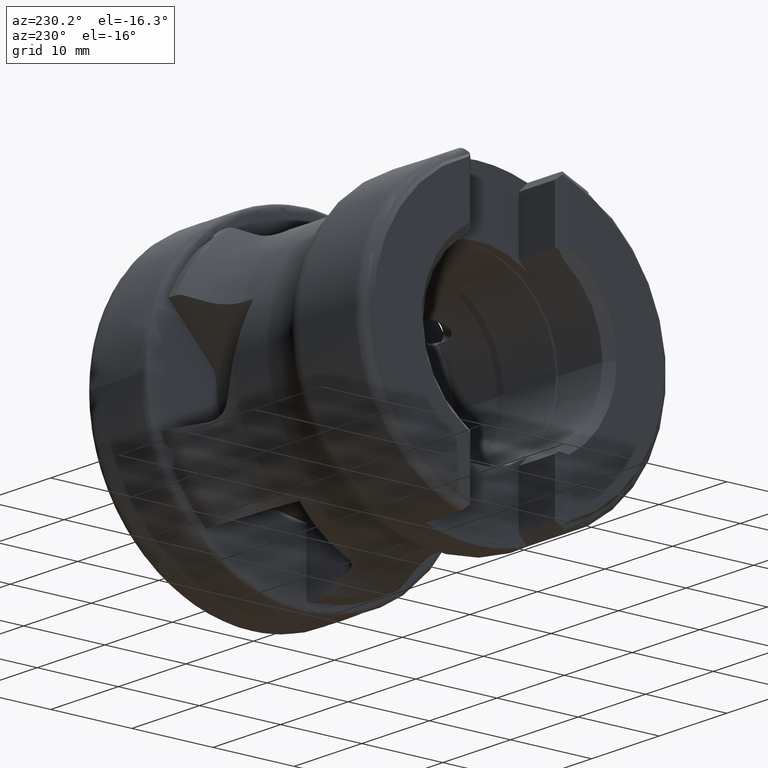
[diagram: clean part render]
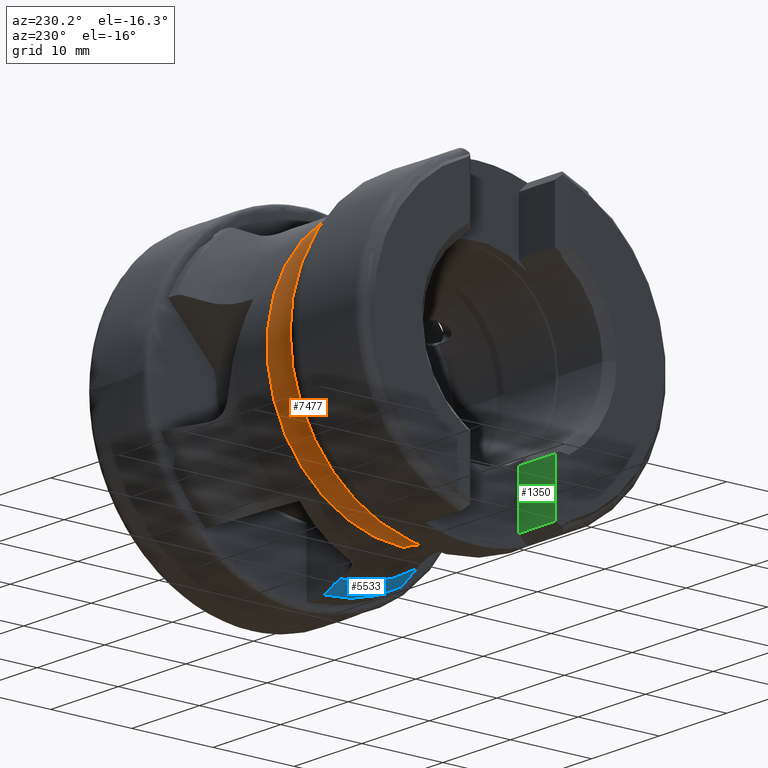
[diagram: same view with three faces highlighted in distinct colors, each labeled with its STEP entity id]
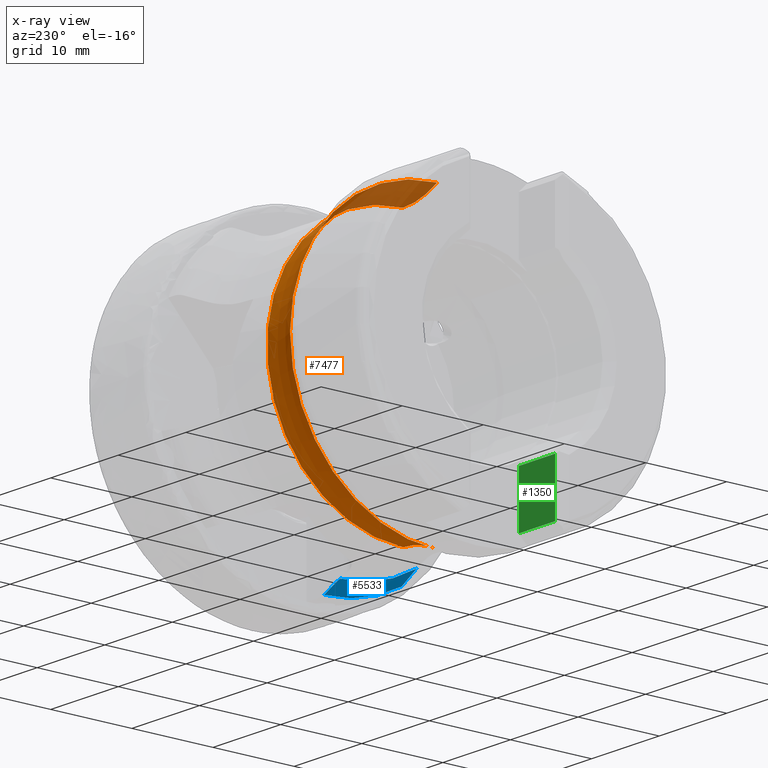
[diagram: x-ray of the same camera — body ghosted, the three highlighted faces saturated]
A machine part, auxiliary view with three faces highlighted in distinct colors.
The next image is the same camera in x-ray (body ghosted, the three faces saturated) — at least one of them is partly hidden behind the body in this view.
Their STEP definitions:

[orange] entity #7477 — the highlighted toroidal blend (fillet) surface has major radius 26.75 mm and minor (blend) radius 10 mm.
#306 = DIRECTION ( 'NONE',  ( 0.0000000000000000000, 1.224646799147353500E-016, 1.000000000000000000 ) ) ;
#443 = DIRECTION ( 'NONE',  ( 0.0000000000000000000, 0.0000000000000000000, -1.000000000000000000 ) ) ;
#501 = EDGE_CURVE ( 'NONE', #7365, #2012, #7478, .T. ) ;
#1208 = FACE_OUTER_BOUND ( 'NONE', #3200, .T. ) ;
#1991 = AXIS2_PLACEMENT_3D ( 'NONE', #7860, #4502, #443 ) ;
#2012 = VERTEX_POINT ( 'NONE', #2852 ) ;
#2071 = ORIENTED_EDGE ( 'NONE', *, *, #501, .T. ) ;
#2200 = ORIENTED_EDGE ( 'NONE', *, *, #5921, .F. ) ;
#2356 = CIRCLE ( 'NONE', #6063, 16.75000000000000000 ) ;
#2830 = AXIS2_PLACEMENT_3D ( 'NONE', #8408, #4364, #306 ) ;
#2852 = CARTESIAN_POINT ( 'NONE',  ( -27.13351365764274400, 2.251215773690051800E-015, -18.10352484776151600 ) ) ;
#3053 = AXIS2_PLACEMENT_3D ( 'NONE', #3245, #7995, #3946 ) ;
#3108 = ORIENTED_EDGE ( 'NONE', *, *, #7207, .T. ) ;
#3200 = EDGE_LOOP ( 'NONE', ( #6243, #2200, #2071, #3108 ) ) ;
#3245 = CARTESIAN_POINT ( 'NONE',  ( -27.13351365764274400, 0.0000000000000000000, 0.0000000000000000000 ) ) ;
#3507 = CARTESIAN_POINT ( 'NONE',  ( -22.10972351058022100, 0.0000000000000000000, 0.0000000000000000000 ) ) ;
#3946 = DIRECTION ( 'NONE',  ( 0.0000000000000000000, 0.0000000000000000000, -1.000000000000000000 ) ) ;
#4190 = DIRECTION ( 'NONE',  ( 0.0000000000000000000, 0.0000000000000000000, -1.000000000000000000 ) ) ;
#4274 = VERTEX_POINT ( 'NONE', #4682 ) ;
#4364 = DIRECTION ( 'NONE',  ( 0.0000000000000000000, 1.000000000000000000, -1.224646799147353200E-016 ) ) ;
#4502 = DIRECTION ( 'NONE',  ( 1.000000000000000000, -0.0000000000000000000, -0.0000000000000000000 ) ) ;
#4682 = CARTESIAN_POINT ( 'NONE',  ( -27.13351365764274400, 0.0000000000000000000, 18.10352484776151600 ) ) ;
#4703 = CIRCLE ( 'NONE', #3053, 18.10352484776151600 ) ;
#4789 = CARTESIAN_POINT ( 'NONE',  ( -22.10972351058022100, 2.134162882190694600E-015, 16.75000000000000000 ) ) ;
#5213 = DIRECTION ( 'NONE',  ( 0.0000000000000000000, 0.0000000000000000000, -1.000000000000000000 ) ) ;
#5760 = DIRECTION ( 'NONE',  ( -0.0000000000000000000, -1.000000000000000000, -0.0000000000000000000 ) ) ;
#5921 = EDGE_CURVE ( 'NONE', #7365, #7622, #2356, .T. ) ;
#6063 = AXIS2_PLACEMENT_3D ( 'NONE', #3507, #8249, #4190 ) ;
#6243 = ORIENTED_EDGE ( 'NONE', *, *, #8167, .F. ) ;
#6380 = CARTESIAN_POINT ( 'NONE',  ( -22.10972351058022100, 0.0000000000000000000, -16.75000000000000000 ) ) ;
#6695 = CARTESIAN_POINT ( 'NONE',  ( -22.10972351058022100, 0.0000000000000000000, -26.75000000000000400 ) ) ;
#7207 = EDGE_CURVE ( 'NONE', #2012, #4274, #4703, .T. ) ;
#7365 = VERTEX_POINT ( 'NONE', #6380 ) ;
#7477 = ADVANCED_FACE ( 'NONE', ( #1208 ), #8630, .F. ) ;
#7478 = CIRCLE ( 'NONE', #7673, 10.00000000000000200 ) ;
#7622 = VERTEX_POINT ( 'NONE', #4789 ) ;
#7673 = AXIS2_PLACEMENT_3D ( 'NONE', #6695, #5760, #5213 ) ;
#7746 = CIRCLE ( 'NONE', #2830, 10.00000000000000200 ) ;
#7860 = CARTESIAN_POINT ( 'NONE',  ( -22.10972351058022100, 0.0000000000000000000, 0.0000000000000000000 ) ) ;
#7995 = DIRECTION ( 'NONE',  ( 1.000000000000000000, -0.0000000000000000000, -0.0000000000000000000 ) ) ;
#8167 = EDGE_CURVE ( 'NONE', #7622, #4274, #7746, .T. ) ;
#8249 = DIRECTION ( 'NONE',  ( 1.000000000000000000, -0.0000000000000000000, -0.0000000000000000000 ) ) ;
#8408 = CARTESIAN_POINT ( 'NONE',  ( -22.10972351058022100, 3.275930187719170300E-015, 26.75000000000000400 ) ) ;
#8630 = TOROIDAL_SURFACE ( 'NONE', #1991, 26.75000000000000400, 10.00000000000000200 ) ;

[blue] entity #5533 — the highlighted conical surface has half-angle 25.522 deg.
#90 = CARTESIAN_POINT ( 'NONE',  ( -10.43251948672131300, 0.0000000000000000000, 0.0000000000000000000 ) ) ;
#107 = CARTESIAN_POINT ( 'NONE',  ( -10.43251948672131300, 0.0000000000000000000, 0.0000000000000000000 ) ) ;
#494 = DIRECTION ( 'NONE',  ( 0.0000000000000000000, 0.0000000000000000000, -1.000000000000000000 ) ) ;
#543 = VERTEX_POINT ( 'NONE', #2490 ) ;
#770 = DIRECTION ( 'NONE',  ( 0.0000000000000000000, 0.0000000000000000000, -1.000000000000000000 ) ) ;
#897 = CARTESIAN_POINT ( 'NONE',  ( -10.43251948672131300, 0.0000000000000000000, -18.82147133473654700 ) ) ;
#1333 = ORIENTED_EDGE ( 'NONE', *, *, #6028, .T. ) ;
#1407 = CARTESIAN_POINT ( 'NONE',  ( -11.97855662847929600, 5.206426478626476700E-017, -18.08333714479730100 ) ) ;
#1847 = B_SPLINE_CURVE_WITH_KNOTS ( 'NONE', 3,
 ( #3299, #2617, #8049, #4000 ),
 .UNSPECIFIED., .F., .F.,
 ( 4, 4 ),
 ( 2.278791317094224100E-007, 0.002610024952688244600 ),
 .UNSPECIFIED. ) ;
#2043 = EDGE_CURVE ( 'NONE', #2317, #4654, #6880, .T. ) ;
#2225 = CARTESIAN_POINT ( 'NONE',  ( -10.43251948672131300, -9.563765639698090100, -16.21055736220194600 ) ) ;
#2317 = VERTEX_POINT ( 'NONE', #1407 ) ;
#2490 = CARTESIAN_POINT ( 'NONE',  ( -10.43251948672131300, 0.0000000000000000000, -18.82147133473654700 ) ) ;
#2603 = EDGE_LOOP ( 'NONE', ( #3260, #1333, #6989, #8254, #7875 ) ) ;
#2617 = CARTESIAN_POINT ( 'NONE',  ( -11.96400373747393300, -9.516436249931523200, -15.38625479876626300 ) ) ;
#2913 = EDGE_CURVE ( 'NONE', #7265, #543, #7694, .T. ) ;
#2929 = CARTESIAN_POINT ( 'NONE',  ( -12.72750221643077300, -0.06552424854351240900, -17.72564225736218500 ) ) ;
#3260 = ORIENTED_EDGE ( 'NONE', *, *, #2043, .F. ) ;
#3299 = CARTESIAN_POINT ( 'NONE',  ( -12.72750221643077700, -9.492189298077519800, -14.97000431504927500 ) ) ;
#3567 = CONICAL_SURFACE ( 'NONE', #8683, 18.82147133473654700, 0.4454342278078330900 ) ;
#3612 = CIRCLE ( 'NONE', #8171, 17.72576336475051000 ) ;
#4000 = CARTESIAN_POINT ( 'NONE',  ( -10.43251948672131300, -9.563765639698090100, -16.21055736220194600 ) ) ;
#4165 = DIRECTION ( 'NONE',  ( 1.000000000000000000, -0.0000000000000000000, -0.0000000000000000000 ) ) ;
#4268 = EDGE_CURVE ( 'NONE', #6764, #7265, #1847, .T. ) ;
#4567 = DIRECTION ( 'NONE',  ( 1.000000000000000000, -0.0000000000000000000, -0.0000000000000000000 ) ) ;
#4654 = VERTEX_POINT ( 'NONE', #8513 ) ;
#4836 = DIRECTION ( 'NONE',  ( 1.000000000000000000, -0.0000000000000000000, -0.0000000000000000000 ) ) ;
#5289 = CARTESIAN_POINT ( 'NONE',  ( -12.72750221643077700, -9.492189298077519800, -14.97000431504927500 ) ) ;
#5339 = VECTOR ( 'NONE', #8328, 1000.000000000000000 ) ;
#5533 = ADVANCED_FACE ( 'NONE', ( #5592 ), #3567, .T. ) ;
#5547 = LINE ( 'NONE', #897, #5339 ) ;
#5592 = FACE_OUTER_BOUND ( 'NONE', #2603, .T. ) ;
#6028 = EDGE_CURVE ( 'NONE', #2317, #543, #5547, .T. ) ;
#6325 = CARTESIAN_POINT ( 'NONE',  ( -12.22822075860033100, -0.02184278107465185600, -17.96413843639225800 ) ) ;
#6764 = VERTEX_POINT ( 'NONE', #5289 ) ;
#6880 = B_SPLINE_CURVE_WITH_KNOTS ( 'NONE', 3,
 ( #7000, #6325, #8333, #2929 ),
 .UNSPECIFIED., .F., .F.,
 ( 4, 4 ),
 ( 0.001718550247061083900, 0.002551111659991221800 ),
 .UNSPECIFIED. ) ;
#6989 = ORIENTED_EDGE ( 'NONE', *, *, #2913, .F. ) ;
#7000 = CARTESIAN_POINT ( 'NONE',  ( -11.97855662847929600, 5.206426478626476700E-017, -18.08333714479730100 ) ) ;
#7265 = VERTEX_POINT ( 'NONE', #2225 ) ;
#7694 = CIRCLE ( 'NONE', #8621, 18.82147133473654700 ) ;
#7782 = EDGE_CURVE ( 'NONE', #6764, #4654, #3612, .T. ) ;
#7875 = ORIENTED_EDGE ( 'NONE', *, *, #7782, .T. ) ;
#8049 = CARTESIAN_POINT ( 'NONE',  ( -11.19889827537695100, -9.540268773728005400, -15.79959050608511400 ) ) ;
#8171 = AXIS2_PLACEMENT_3D ( 'NONE', #8618, #4567, #494 ) ;
#8213 = DIRECTION ( 'NONE',  ( 0.0000000000000000000, 0.0000000000000000000, -1.000000000000000000 ) ) ;
#8254 = ORIENTED_EDGE ( 'NONE', *, *, #4268, .F. ) ;
#8328 = DIRECTION ( 'NONE',  ( 0.9024236635249495200, 0.0000000000000000000, -0.4308497783569221200 ) ) ;
#8333 = CARTESIAN_POINT ( 'NONE',  ( -12.47786960516329000, -0.04368422501123360400, -17.84490746521211700 ) ) ;
#8513 = CARTESIAN_POINT ( 'NONE',  ( -12.72750221643077300, -0.06552424854351240900, -17.72564225736218500 ) ) ;
#8618 = CARTESIAN_POINT ( 'NONE',  ( -12.72750221643077500, 0.0000000000000000000, 0.0000000000000000000 ) ) ;
#8621 = AXIS2_PLACEMENT_3D ( 'NONE', #90, #4836, #770 ) ;
#8683 = AXIS2_PLACEMENT_3D ( 'NONE', #107, #4165, #8213 ) ;

[green] entity #1350 — the highlighted planar face has unit normal (0, -1, 0).
#375 = DIRECTION ( 'NONE',  ( -1.000000000000000000, -0.0000000000000000000, -0.0000000000000000000 ) ) ;
#595 = LINE ( 'NONE', #8025, #3994 ) ;
#826 = DIRECTION ( 'NONE',  ( -1.000000000000000000, -0.0000000000000000000, -0.0000000000000000000 ) ) ;
#994 = CARTESIAN_POINT ( 'NONE',  ( -32.99999999999999300, -5.199999999999994800, -10.19264068711928500 ) ) ;
#1254 = EDGE_CURVE ( 'NONE', #8060, #7184, #4755, .T. ) ;
#1350 = ADVANCED_FACE ( 'NONE', ( #6119 ), #4488, .F. ) ;
#1622 = CARTESIAN_POINT ( 'NONE',  ( -32.99999999999999300, -5.199999999999994800, -16.84735931288070500 ) ) ;
#2933 = VERTEX_POINT ( 'NONE', #5519 ) ;
#3077 = AXIS2_PLACEMENT_3D ( 'NONE', #1622, #7266, #6370 ) ;
#3251 = DIRECTION ( 'NONE',  ( 0.0000000000000000000, 0.0000000000000000000, 1.000000000000000000 ) ) ;
#3392 = EDGE_CURVE ( 'NONE', #7517, #7184, #595, .T. ) ;
#3994 = VECTOR ( 'NONE', #3251, 1000.000000000000000 ) ;
#3995 = EDGE_LOOP ( 'NONE', ( #4749, #5495, #7019, #6768 ) ) ;
#4488 = PLANE ( 'NONE',  #3077 ) ;
#4531 = CARTESIAN_POINT ( 'NONE',  ( -38.35000000000000100, -5.199999999999994800, -16.84735931288070500 ) ) ;
#4749 = ORIENTED_EDGE ( 'NONE', *, *, #6906, .T. ) ;
#4755 = LINE ( 'NONE', #994, #8339 ) ;
#4893 = CARTESIAN_POINT ( 'NONE',  ( -32.99999999999999300, -5.199999999999994800, -16.84735931288070500 ) ) ;
#4991 = LINE ( 'NONE', #6526, #6368 ) ;
#5495 = ORIENTED_EDGE ( 'NONE', *, *, #3392, .T. ) ;
#5519 = CARTESIAN_POINT ( 'NONE',  ( -32.99999999999999300, -5.199999999999994800, -16.84735931288070500 ) ) ;
#6119 = FACE_OUTER_BOUND ( 'NONE', #3995, .T. ) ;
#6368 = VECTOR ( 'NONE', #8563, 1000.000000000000000 ) ;
#6370 = DIRECTION ( 'NONE',  ( 0.0000000000000000000, -0.0000000000000000000, -1.000000000000000000 ) ) ;
#6526 = CARTESIAN_POINT ( 'NONE',  ( -32.99999999999999300, -5.199999999999994800, -16.84735931288070500 ) ) ;
#6768 = ORIENTED_EDGE ( 'NONE', *, *, #8729, .F. ) ;
#6906 = EDGE_CURVE ( 'NONE', #2933, #7517, #7990, .T. ) ;
#7019 = ORIENTED_EDGE ( 'NONE', *, *, #1254, .F. ) ;
#7184 = VERTEX_POINT ( 'NONE', #7969 ) ;
#7266 = DIRECTION ( 'NONE',  ( 0.0000000000000000000, -1.000000000000000000, 0.0000000000000000000 ) ) ;
#7517 = VERTEX_POINT ( 'NONE', #4531 ) ;
#7587 = CARTESIAN_POINT ( 'NONE',  ( -32.99999999999999300, -5.199999999999994800, -10.19264068711928500 ) ) ;
#7969 = CARTESIAN_POINT ( 'NONE',  ( -38.34999999999999400, -5.199999999999994000, -10.19264068711928500 ) ) ;
#7990 = LINE ( 'NONE', #4893, #8187 ) ;
#8025 = CARTESIAN_POINT ( 'NONE',  ( -38.35000000000000100, -5.199999999999994800, -10.89796425943856700 ) ) ;
#8060 = VERTEX_POINT ( 'NONE', #7587 ) ;
#8187 = VECTOR ( 'NONE', #826, 1000.000000000000000 ) ;
#8339 = VECTOR ( 'NONE', #375, 1000.000000000000000 ) ;
#8563 = DIRECTION ( 'NONE',  ( 0.0000000000000000000, 0.0000000000000000000, 1.000000000000000000 ) ) ;
#8729 = EDGE_CURVE ( 'NONE', #2933, #8060, #4991, .T. ) ;